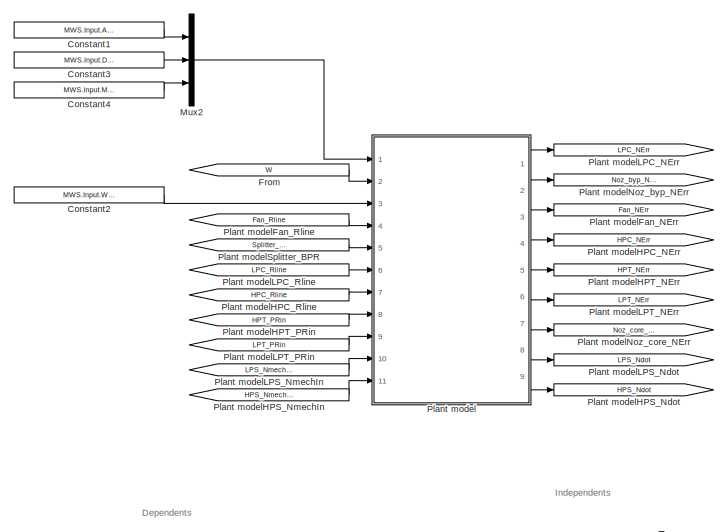
[diagram: root canvas - part 1/2, top left region]
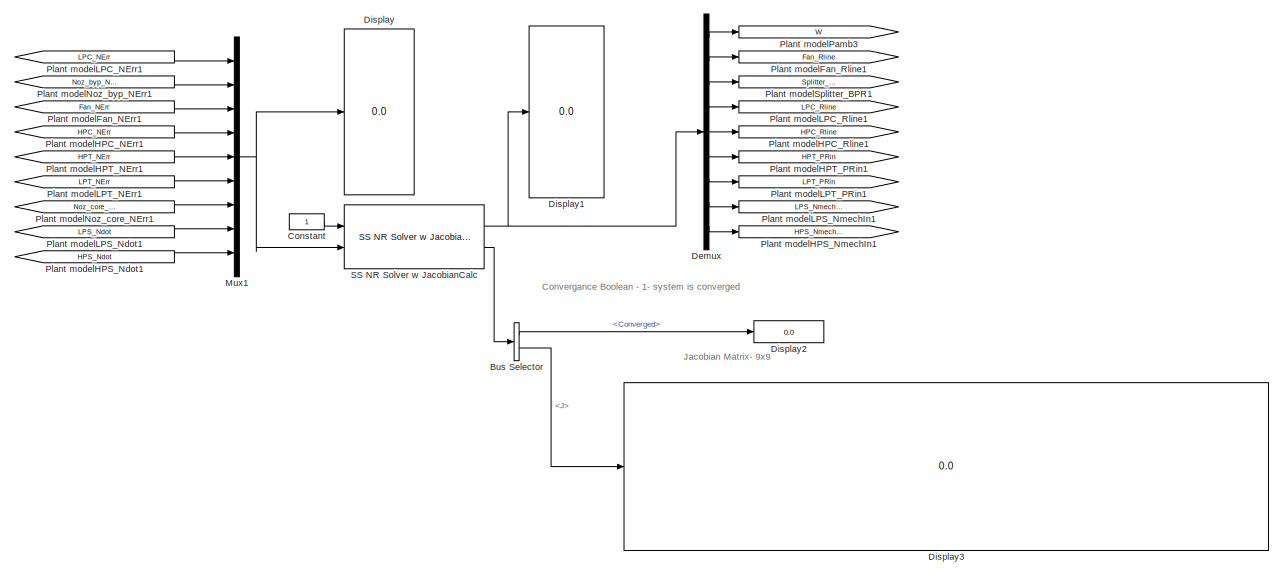
[diagram: root canvas - part 2/2, full width, bottom band]
MODEL slx_f28e8e738f5b
KIND model
CONFIG AbsTol = auto
CONFIG EnableMultiTasking = on
CONFIG FixedStep = 0.2
CONFIG MaxStep = auto
CONFIG MinStep = auto
CONFIG RelTol = 1e-3
CONFIG SampleTimeConstraint = Unconstrained
CONFIG Solver = FixedStepDiscrete
CONFIG SolverName = FixedStepDiscrete
CONFIG StartTime = 0.0
CONFIG StopTime = 30.0
BLOCK [BusSelector] Bus Selector
  OutputSignals = Converged,J
  Ports = [1, 2]
BLOCK [Constant] Constant
BLOCK [Constant] Constant1
  Value = MWS.Input.Altitude
BLOCK [Constant] Constant2
  Value = MWS.Input.Wfin
BLOCK [Constant] Constant3
  Value = MWS.Input.DeltaTamb
BLOCK [Constant] Constant4
  Value = MWS.Input.MachNumb
BLOCK [Demux] Demux
  DisplayOption = bar
  Outputs = 9
  Ports = [1, 9]
BLOCK [Display] Display
  Decimation = 1
  Ports = [1]
BLOCK [Display] Display1
  Decimation = 1
  Ports = [1]
BLOCK [Display] Display2
  Decimation = 1
  Ports = [1]
BLOCK [Display] Display3
  Decimation = 1
  Ports = [1]
BLOCK [From] From
  GotoTag = W
BLOCK [Mux] Mux1
  DisplayOption = bar
  Inputs = 9
  Ports = [9, 1]
BLOCK [Mux] Mux2
  DisplayOption = bar
  Inputs = 3
  Ports = [3, 1]
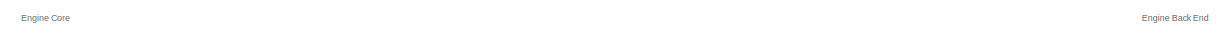
[diagram: Plant model - part 1/7, top right region]
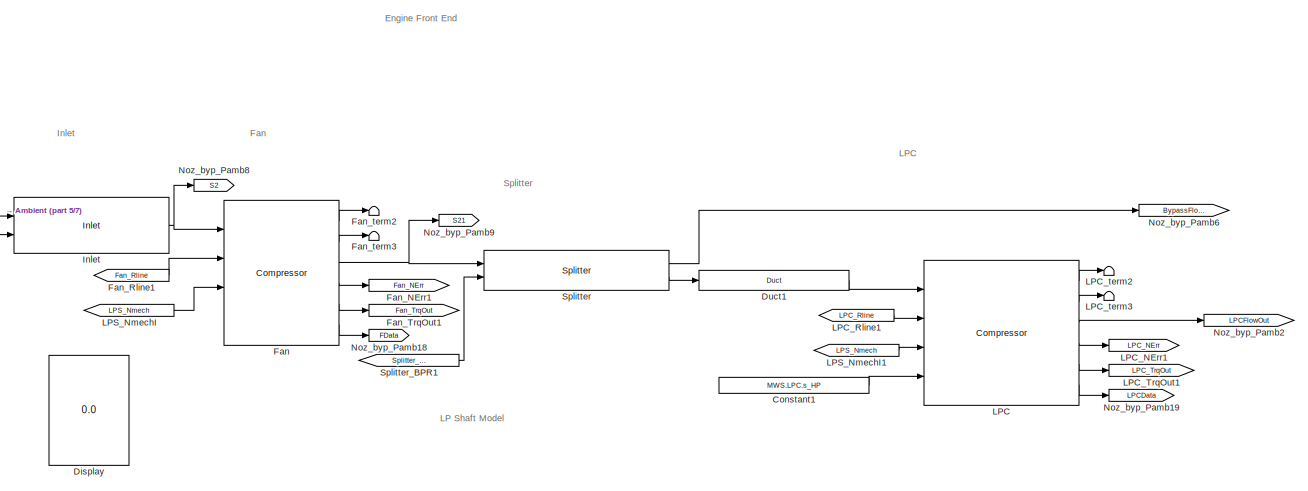
[diagram: Plant model - part 2/7, top left region]
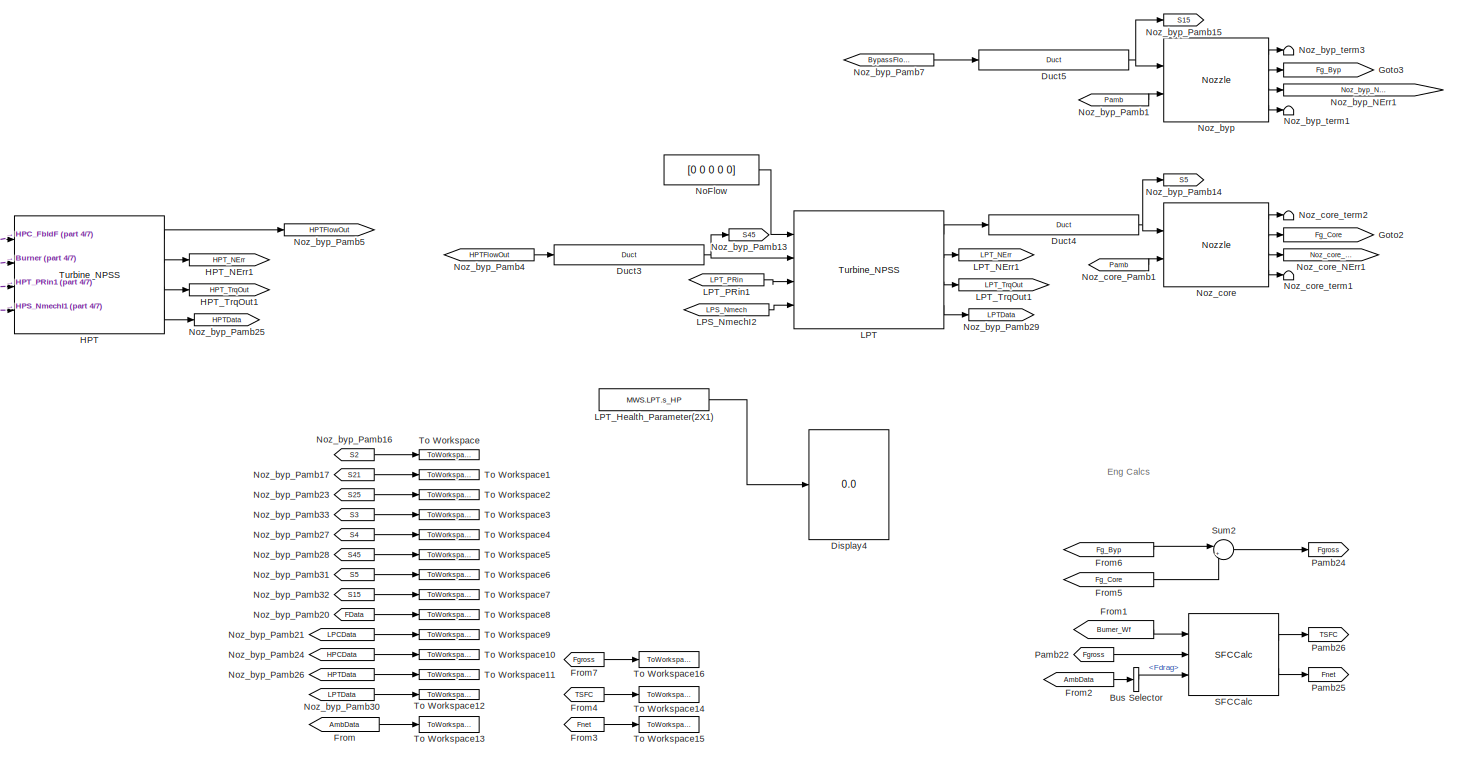
[diagram: Plant model - part 3/7, top right region]
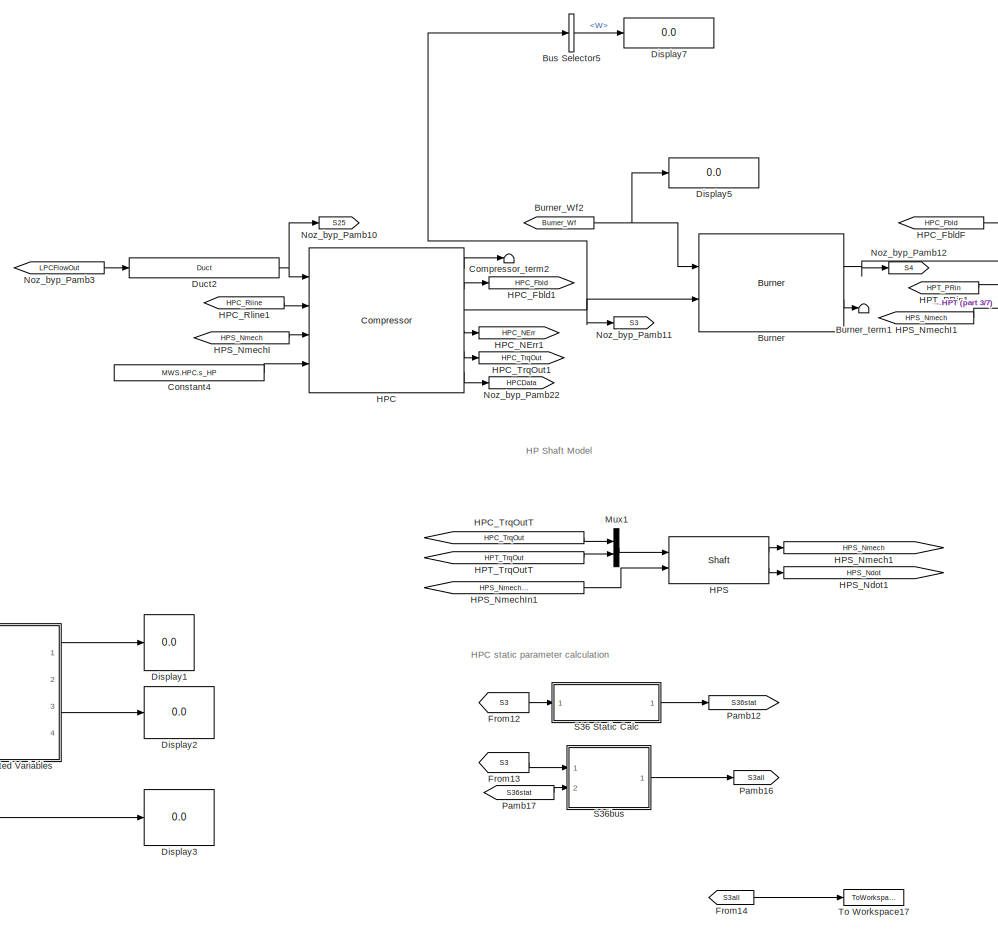
[diagram: Plant model - part 4/7, central region]
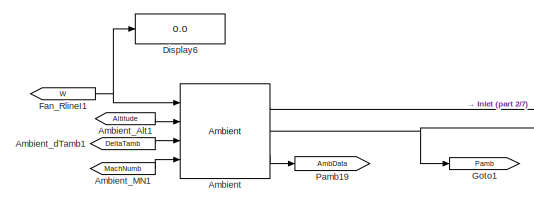
[diagram: Plant model - part 5/7, top left region]
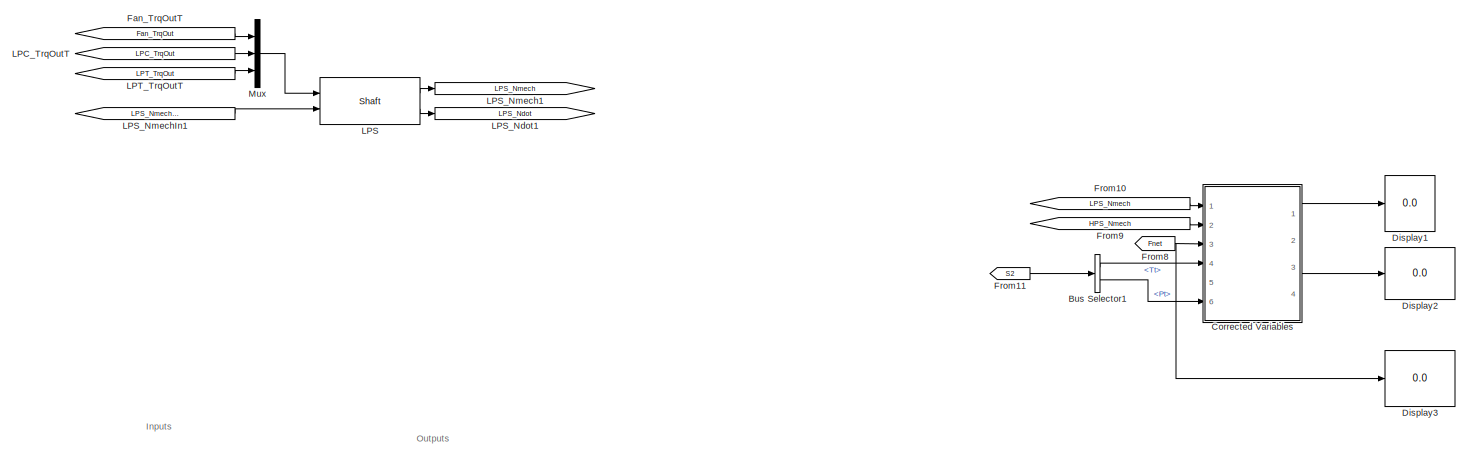
[diagram: Plant model - part 6/7, central region]
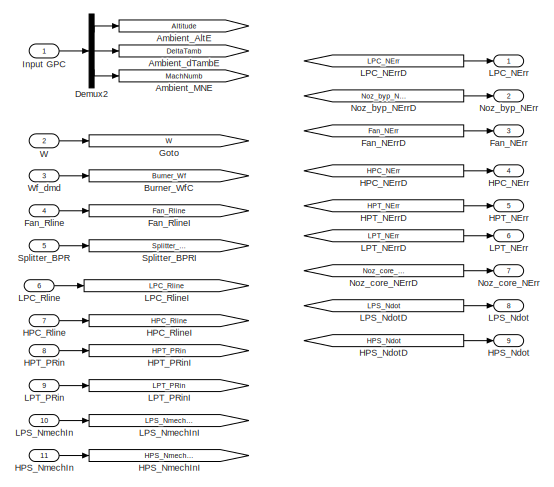
[diagram: Plant model - part 7/7, bottom left region]
BLOCK [SubSystem] Plant model
  Ports = [11, 9]
  RequestExecContextInheritance = off
  Variant = off
BLOCK [Reference] Plant model/Ambient  REF=Lib_Turbo_Ambient_TMATS/Ambient
  Ports = [4, 3]
  SourceBlock = Lib_Turbo_Ambient_TMATS/Ambient
  SourceType = T-MATS: Ambient Library Block
BLOCK [From] Plant model/Ambient_Alt1
  GotoTag = Altitude
BLOCK [Goto] Plant model/Ambient_AltE
  GotoTag = Altitude
BLOCK [From] Plant model/Ambient_MN1
  GotoTag = MachNumb
BLOCK [Goto] Plant model/Ambient_MNE
  GotoTag = MachNumb
BLOCK [From] Plant model/Ambient_dTamb1
  GotoTag = DeltaTamb
BLOCK [Goto] Plant model/Ambient_dTambE
  GotoTag = DeltaTamb
BLOCK [Reference] Plant model/Burner  REF=Lib_Turbo_Burner_TMATS/Burner
  Ports = [2, 2]
  SourceBlock = Lib_Turbo_Burner_TMATS/Burner
  SourceType = T-MATS: Burner Library Block
BLOCK [From] Plant model/Burner_Wf2
  GotoTag = Burner_Wf
BLOCK [Goto] Plant model/Burner_WfC
  GotoTag = Burner_Wf
BLOCK [Terminator] Plant model/Burner_term1
BLOCK [BusSelector] Plant model/Bus Selector
  OutputSignals = Fdrag
  Ports = [1, 1]
BLOCK [BusSelector] Plant model/Bus Selector1
  OutputSignals = Tt,Pt
  Ports = [1, 2]
BLOCK [BusSelector] Plant model/Bus Selector5
  OutputSignals = W
  Ports = [1, 1]
BLOCK [Terminator] Plant model/Compressor_term2
BLOCK [Constant] Plant model/Constant1
  Value = MWS.LPC.s_HP
BLOCK [Constant] Plant model/Constant4
  Value = MWS.HPC.s_HP
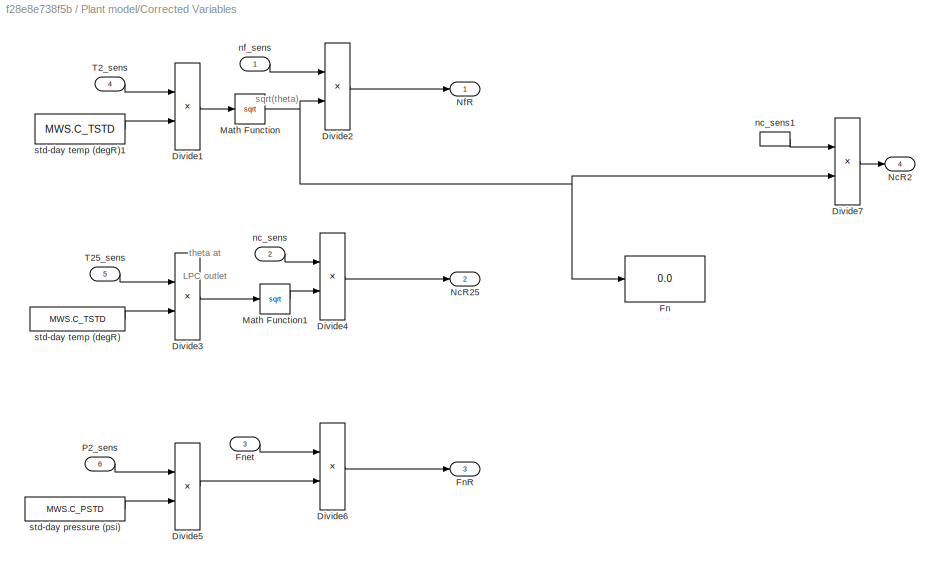
BLOCK [SubSystem] Plant model/Corrected Variables
  Ports = [6, 4]
  RequestExecContextInheritance = off
  Variant = off
BLOCK [Product] Plant model/Corrected Variables/Divide1
  InputSameDT = off
  Inputs = */
  OutDataTypeStr = Inherit: Inherit via internal rule
  Ports = [2, 1]
  RndMeth = Floor
  SaturateOnIntegerOverflow = off
BLOCK [Product] Plant model/Corrected Variables/Divide2
  InputSameDT = off
  Inputs = */
  OutDataTypeStr = Inherit: Inherit via internal rule
  Ports = [2, 1]
  RndMeth = Floor
  SaturateOnIntegerOverflow = off
BLOCK [Product] Plant model/Corrected Variables/Divide3
  InputSameDT = off
  Inputs = */
  OutDataTypeStr = Inherit: Inherit via internal rule
  Ports = [2, 1]
  RndMeth = Floor
  SaturateOnIntegerOverflow = off
BLOCK [Product] Plant model/Corrected Variables/Divide4
  InputSameDT = off
  Inputs = */
  OutDataTypeStr = Inherit: Inherit via internal rule
  Ports = [2, 1]
  RndMeth = Floor
  SaturateOnIntegerOverflow = off
BLOCK [Product] Plant model/Corrected Variables/Divide5
  InputSameDT = off
  Inputs = */
  OutDataTypeStr = Inherit: Inherit via internal rule
  Ports = [2, 1]
  RndMeth = Floor
  SaturateOnIntegerOverflow = off
BLOCK [Product] Plant model/Corrected Variables/Divide6
  InputSameDT = off
  Inputs = */
  OutDataTypeStr = Inherit: Inherit via internal rule
  Ports = [2, 1]
  RndMeth = Floor
  SaturateOnIntegerOverflow = off
BLOCK [Product] Plant model/Corrected Variables/Divide7
  InputSameDT = off
  Inputs = */
  OutDataTypeStr = Inherit: Inherit via internal rule
  Ports = [2, 1]
  RndMeth = Floor
  SaturateOnIntegerOverflow = off
BLOCK [Display] Plant model/Corrected Variables/Fn
  Decimation = 1
  Ports = [1]
BLOCK [Outport] Plant model/Corrected Variables/FnR
  IconDisplay = Port number
  Port = 3
BLOCK [Inport] Plant model/Corrected Variables/Fnet
  IconDisplay = Port number
  Port = 3
BLOCK [Math] Plant model/Corrected Variables/Math Function
  Operator = sqrt
  Ports = [1, 1]
BLOCK [Math] Plant model/Corrected Variables/Math Function1
  Operator = sqrt
  Ports = [1, 1]
BLOCK [Outport] Plant model/Corrected Variables/NcR2
  IconDisplay = Port number
  Port = 4
BLOCK [Outport] Plant model/Corrected Variables/NcR25
  IconDisplay = Port number
  Port = 2
BLOCK [Outport] Plant model/Corrected Variables/NfR
  IconDisplay = Port number
BLOCK [Inport] Plant model/Corrected Variables/P2_sens
  IconDisplay = Port number
  Port = 6
BLOCK [Inport] Plant model/Corrected Variables/T25_sens
  IconDisplay = Port number
  Port = 5
BLOCK [Inport] Plant model/Corrected Variables/T2_sens
  IconDisplay = Port number
  Port = 4
BLOCK [Inport] Plant model/Corrected Variables/nc_sens
  IconDisplay = Port number
  Port = 2
BLOCK [InportShadow] Plant model/Corrected Variables/nc_sens1
  IconDisplay = Port number
  Port = 2
BLOCK [Inport] Plant model/Corrected Variables/nf_sens
  IconDisplay = Port number
BLOCK [Constant] Plant model/Corrected Variables/std-day pressure (psi)
  Value = MWS.C_PSTD
BLOCK [Constant] Plant model/Corrected Variables/std-day temp (degR)
  Value = MWS.C_TSTD
BLOCK [Constant] Plant model/Corrected Variables/std-day temp (degR)1
  Value = MWS.C_TSTD
BLOCK [Demux] Plant model/Demux2
  DisplayOption = bar
  Outputs = 3
  Ports = [1, 3]
BLOCK [Display] Plant model/Display
  Decimation = 1
  Ports = [1]
BLOCK [Display] Plant model/Display1
  Decimation = 1
  Ports = [1]
BLOCK [Display] Plant model/Display2
  Decimation = 1
  Ports = [1]
BLOCK [Display] Plant model/Display3
  Decimation = 1
  Ports = [1]
BLOCK [Display] Plant model/Display4
  Decimation = 1
  Ports = [1]
BLOCK [Display] Plant model/Display5
  Decimation = 1
  Ports = [1]
BLOCK [Display] Plant model/Display6
  Decimation = 1
  Ports = [1]
BLOCK [Display] Plant model/Display7
  Decimation = 1
  Ports = [1]
BLOCK [Reference] Plant model/Duct1  REF=Lib_Turbo_Duct_TMATS/Duct
  Ports = [1, 1]
  SourceBlock = Lib_Turbo_Duct_TMATS/Duct
  SourceType = T-MATS: Duct Library Block
BLOCK [Reference] Plant model/Duct2  REF=Lib_Turbo_Duct_TMATS/Duct
  Ports = [1, 1]
  SourceBlock = Lib_Turbo_Duct_TMATS/Duct
  SourceType = T-MATS: Duct Library Block
BLOCK [Reference] Plant model/Duct3  REF=Lib_Turbo_Duct_TMATS/Duct
  Ports = [1, 1]
  SourceBlock = Lib_Turbo_Duct_TMATS/Duct
  SourceType = T-MATS: Duct Library Block
BLOCK [Reference] Plant model/Duct4  REF=Lib_Turbo_Duct_TMATS/Duct
  Ports = [1, 1]
  SourceBlock = Lib_Turbo_Duct_TMATS/Duct
  SourceType = T-MATS: Duct Library Block
BLOCK [Reference] Plant model/Duct5  REF=Lib_Turbo_Duct_TMATS/Duct
  Ports = [1, 1]
  SourceBlock = Lib_Turbo_Duct_TMATS/Duct
  SourceType = T-MATS: Duct Library Block
BLOCK [Reference] Plant model/Fan  REF=Lib_Turbo_Compressor_TMATS/Compressor
  Ports = [4, 6]
  SourceBlock = Lib_Turbo_Compressor_TMATS/Compressor
  SourceType = T-MATS: Compressor Library Block
BLOCK [Outport] Plant model/Fan_NErr
  IconDisplay = Port number
  Port = 3
BLOCK [Goto] Plant model/Fan_NErr1
  GotoTag = Fan_NErr
BLOCK [From] Plant model/Fan_NErrD
  GotoTag = Fan_NErr
BLOCK [Inport] Plant model/Fan_Rline
  IconDisplay = Port number
  Port = 4
BLOCK [From] Plant model/Fan_Rline1
  GotoTag = Fan_Rline
BLOCK [Goto] Plant model/Fan_RlineI
  GotoTag = Fan_Rline
BLOCK [From] Plant model/Fan_RlineI1
  GotoTag = W
BLOCK [Goto] Plant model/Fan_TrqOut1
  GotoTag = Fan_TrqOut
BLOCK [From] Plant model/Fan_TrqOutT
  GotoTag = Fan_TrqOut
BLOCK [Terminator] Plant model/Fan_term2
BLOCK [Terminator] Plant model/Fan_term3
BLOCK [From] Plant model/From
  GotoTag = AmbData
BLOCK [From] Plant model/From1
  GotoTag = Burner_Wf
BLOCK [From] Plant model/From10
  GotoTag = LPS_Nmech
BLOCK [From] Plant model/From11
  GotoTag = S2
BLOCK [From] Plant model/From12
  GotoTag = S3
BLOCK [From] Plant model/From13
  GotoTag = S3
BLOCK [From] Plant model/From14
  GotoTag = S3all
BLOCK [From] Plant model/From2
  GotoTag = AmbData
BLOCK [From] Plant model/From3
  GotoTag = Fnet
BLOCK [From] Plant model/From4
  GotoTag = TSFC
BLOCK [From] Plant model/From5
  GotoTag = Fg_Core
BLOCK [From] Plant model/From6
  GotoTag = Fg_Byp
BLOCK [From] Plant model/From7
  GotoTag = Fgross
BLOCK [From] Plant model/From8
  GotoTag = Fnet
BLOCK [From] Plant model/From9
  GotoTag = HPS_Nmech
BLOCK [Goto] Plant model/Goto
  GotoTag = W
BLOCK [Goto] Plant model/Goto1
  GotoTag = Pamb
BLOCK [Goto] Plant model/Goto2
  GotoTag = Fg_Core
BLOCK [Goto] Plant model/Goto3
  GotoTag = Fg_Byp
BLOCK [Reference] Plant model/HPC  REF=Lib_Turbo_Compressor_TMATS/Compressor
  Ports = [4, 6]
  SourceBlock = Lib_Turbo_Compressor_TMATS/Compressor
  SourceType = T-MATS: Compressor Library Block
BLOCK [Goto] Plant model/HPC_Fbld1
  GotoTag = HPC_Fbld
BLOCK [From] Plant model/HPC_FbldF
  GotoTag = HPC_Fbld
BLOCK [Outport] Plant model/HPC_NErr
  IconDisplay = Port number
  Port = 4
BLOCK [Goto] Plant model/HPC_NErr1
  GotoTag = HPC_NErr
BLOCK [From] Plant model/HPC_NErrD
  GotoTag = HPC_NErr
BLOCK [Inport] Plant model/HPC_Rline
  IconDisplay = Port number
  Port = 7
BLOCK [From] Plant model/HPC_Rline1
  GotoTag = HPC_Rline
BLOCK [Goto] Plant model/HPC_RlineI
  GotoTag = HPC_Rline
BLOCK [Goto] Plant model/HPC_TrqOut1
  GotoTag = HPC_TrqOut
BLOCK [From] Plant model/HPC_TrqOutT
  GotoTag = HPC_TrqOut
BLOCK [Reference] Plant model/HPS  REF=Lib_Turbo_Shaft_TMATS/Shaft
  Ports = [2, 2]
  SourceBlock = Lib_Turbo_Shaft_TMATS/Shaft
  SourceType = T-MATS: Shaft Library Block
BLOCK [Outport] Plant model/HPS_Ndot
  IconDisplay = Port number
  Port = 9
BLOCK [Goto] Plant model/HPS_Ndot1
  GotoTag = HPS_Ndot
BLOCK [From] Plant model/HPS_NdotD
  GotoTag = HPS_Ndot
BLOCK [Goto] Plant model/HPS_Nmech1
  GotoTag = HPS_Nmech
BLOCK [From] Plant model/HPS_NmechI
  GotoTag = HPS_Nmech
BLOCK [From] Plant model/HPS_NmechI1
  GotoTag = HPS_Nmech
BLOCK [Inport] Plant model/HPS_NmechIn
  IconDisplay = Port number
  Port = 11
BLOCK [From] Plant model/HPS_NmechIn1
  GotoTag = HPS_NmechIn
BLOCK [Goto] Plant model/HPS_NmechInI
  GotoTag = HPS_NmechIn
BLOCK [Reference] Plant model/HPT  REF=Lib_Turbo_TurbineNPSS_TMATS/Turbine_NPSS
  Ports = [4, 4]
  SourceBlock = Lib_Turbo_TurbineNPSS_TMATS/Turbine_NPSS
  SourceType = T-MATS: Turbine, NPSS Library Block
BLOCK [Outport] Plant model/HPT_NErr
  IconDisplay = Port number
  Port = 5
BLOCK [Goto] Plant model/HPT_NErr1
  GotoTag = HPT_NErr
BLOCK [From] Plant model/HPT_NErrD
  GotoTag = HPT_NErr
BLOCK [Inport] Plant model/HPT_PRin
  IconDisplay = Port number
  Port = 8
BLOCK [From] Plant model/HPT_PRin1
  GotoTag = HPT_PRin
BLOCK [Goto] Plant model/HPT_PRinI
  GotoTag = HPT_PRin
BLOCK [Goto] Plant model/HPT_TrqOut1
  GotoTag = HPT_TrqOut
BLOCK [From] Plant model/HPT_TrqOutT
  GotoTag = HPT_TrqOut
BLOCK [Reference] Plant model/Inlet  REF=Lib_Turbo_Inlet_TMATS/Inlet
  Ports = [2, 1]
  SourceBlock = Lib_Turbo_Inlet_TMATS/Inlet
  SourceType = T-MATS: Inlet Library Block
BLOCK [Inport] Plant model/Input GPC
  IconDisplay = Port number
BLOCK [Reference] Plant model/LPC  REF=Lib_Turbo_Compressor_TMATS/Compressor
  Ports = [4, 6]
  SourceBlock = Lib_Turbo_Compressor_TMATS/Compressor
  SourceType = T-MATS: Compressor Library Block
BLOCK [Outport] Plant model/LPC_NErr
  IconDisplay = Port number
BLOCK [Goto] Plant model/LPC_NErr1
  GotoTag = LPC_NErr
BLOCK [From] Plant model/LPC_NErrD
  GotoTag = LPC_NErr
BLOCK [Inport] Plant model/LPC_Rline
  IconDisplay = Port number
  Port = 6
BLOCK [From] Plant model/LPC_Rline1
  GotoTag = LPC_Rline
BLOCK [Goto] Plant model/LPC_RlineI
  GotoTag = LPC_Rline
BLOCK [Goto] Plant model/LPC_TrqOut1
  GotoTag = LPC_TrqOut
BLOCK [From] Plant model/LPC_TrqOutT
  GotoTag = LPC_TrqOut
BLOCK [Terminator] Plant model/LPC_term2
BLOCK [Terminator] Plant model/LPC_term3
BLOCK [Reference] Plant model/LPS  REF=Lib_Turbo_Shaft_TMATS/Shaft
  Ports = [2, 2]
  SourceBlock = Lib_Turbo_Shaft_TMATS/Shaft
  SourceType = T-MATS: Shaft Library Block
BLOCK [Outport] Plant model/LPS_Ndot
  IconDisplay = Port number
  Port = 8
BLOCK [Goto] Plant model/LPS_Ndot1
  GotoTag = LPS_Ndot
BLOCK [From] Plant model/LPS_NdotD
  GotoTag = LPS_Ndot
BLOCK [Goto] Plant model/LPS_Nmech1
  GotoTag = LPS_Nmech
BLOCK [From] Plant model/LPS_NmechI
  GotoTag = LPS_Nmech
BLOCK [From] Plant model/LPS_NmechI1
  GotoTag = LPS_Nmech
BLOCK [From] Plant model/LPS_NmechI2
  GotoTag = LPS_Nmech
BLOCK [Inport] Plant model/LPS_NmechIn
  IconDisplay = Port number
  Port = 10
BLOCK [From] Plant model/LPS_NmechIn1
  GotoTag = LPS_NmechIn
BLOCK [Goto] Plant model/LPS_NmechInI
  GotoTag = LPS_NmechIn
BLOCK [Reference] Plant model/LPT  REF=Lib_Turbo_TurbineNPSS_TMATS/Turbine_NPSS
  Ports = [4, 4]
  SourceBlock = Lib_Turbo_TurbineNPSS_TMATS/Turbine_NPSS
  SourceType = T-MATS: Turbine, NPSS Library Block
BLOCK [Constant] Plant model/LPT_Health_Parameter(2X1)
  Value = MWS.LPT.s_HP
BLOCK [Outport] Plant model/LPT_NErr
  IconDisplay = Port number
  Port = 6
BLOCK [Goto] Plant model/LPT_NErr1
  GotoTag = LPT_NErr
BLOCK [From] Plant model/LPT_NErrD
  GotoTag = LPT_NErr
BLOCK [Inport] Plant model/LPT_PRin
  IconDisplay = Port number
  Port = 9
BLOCK [From] Plant model/LPT_PRin1
  GotoTag = LPT_PRin
BLOCK [Goto] Plant model/LPT_PRinI
  GotoTag = LPT_PRin
BLOCK [Goto] Plant model/LPT_TrqOut1
  GotoTag = LPT_TrqOut
BLOCK [From] Plant model/LPT_TrqOutT
  GotoTag = LPT_TrqOut
BLOCK [Mux] Plant model/Mux
  DisplayOption = bar
  Inputs = 3
  Ports = [3, 1]
BLOCK [Mux] Plant model/Mux1
  DisplayOption = bar
  Inputs = 2
  Ports = [2, 1]
BLOCK [Constant] Plant model/NoFlow
  Value = [0 0 0 0 0]
BLOCK [Reference] Plant model/Noz_byp  REF=Lib_Turbo_Nozzle_TMATS/Nozzle
  Ports = [2, 4]
  SourceBlock = Lib_Turbo_Nozzle_TMATS/Nozzle
  SourceType = T-MATS: Nozzle Library Block
BLOCK [Outport] Plant model/Noz_byp_NErr
  IconDisplay = Port number
  Port = 2
BLOCK [Goto] Plant model/Noz_byp_NErr1
  GotoTag = Noz_byp_NErr
BLOCK [From] Plant model/Noz_byp_NErrD
  GotoTag = Noz_byp_NErr
BLOCK [From] Plant model/Noz_byp_Pamb1
  GotoTag = Pamb
BLOCK [Goto] Plant model/Noz_byp_Pamb10
  GotoTag = S25
BLOCK [Goto] Plant model/Noz_byp_Pamb11
  GotoTag = S3
BLOCK [Goto] Plant model/Noz_byp_Pamb12
  GotoTag = S4
BLOCK [Goto] Plant model/Noz_byp_Pamb13
  GotoTag = S45
BLOCK [Goto] Plant model/Noz_byp_Pamb14
  GotoTag = S5
BLOCK [Goto] Plant model/Noz_byp_Pamb15
  GotoTag = S15
BLOCK [From] Plant model/Noz_byp_Pamb16
  GotoTag = S2
BLOCK [From] Plant model/Noz_byp_Pamb17
  GotoTag = S21
BLOCK [Goto] Plant model/Noz_byp_Pamb18
  GotoTag = FData
BLOCK [Goto] Plant model/Noz_byp_Pamb19
  GotoTag = LPCData
BLOCK [Goto] Plant model/Noz_byp_Pamb2
  GotoTag = LPCFlowOut
BLOCK [From] Plant model/Noz_byp_Pamb20
  GotoTag = FData
BLOCK [From] Plant model/Noz_byp_Pamb21
  GotoTag = LPCData
BLOCK [Goto] Plant model/Noz_byp_Pamb22
  GotoTag = HPCData
BLOCK [From] Plant model/Noz_byp_Pamb23
  GotoTag = S25
BLOCK [From] Plant model/Noz_byp_Pamb24
  GotoTag = HPCData
BLOCK [Goto] Plant model/Noz_byp_Pamb25
  GotoTag = HPTData
BLOCK [From] Plant model/Noz_byp_Pamb26
  GotoTag = HPTData
BLOCK [From] Plant model/Noz_byp_Pamb27
  GotoTag = S4
BLOCK [From] Plant model/Noz_byp_Pamb28
  GotoTag = S45
BLOCK [Goto] Plant model/Noz_byp_Pamb29
  GotoTag = LPTData
BLOCK [From] Plant model/Noz_byp_Pamb3
  GotoTag = LPCFlowOut
BLOCK [From] Plant model/Noz_byp_Pamb30
  GotoTag = LPTData
BLOCK [From] Plant model/Noz_byp_Pamb31
  GotoTag = S5
BLOCK [From] Plant model/Noz_byp_Pamb32
  GotoTag = S15
BLOCK [From] Plant model/Noz_byp_Pamb33
  GotoTag = S3
BLOCK [From] Plant model/Noz_byp_Pamb4
  GotoTag = HPTFlowOut
BLOCK [Goto] Plant model/Noz_byp_Pamb5
  GotoTag = HPTFlowOut
BLOCK [Goto] Plant model/Noz_byp_Pamb6
  GotoTag = BypassFlowOut
BLOCK [From] Plant model/Noz_byp_Pamb7
  GotoTag = BypassFlowOut
BLOCK [Goto] Plant model/Noz_byp_Pamb8
  GotoTag = S2
BLOCK [Goto] Plant model/Noz_byp_Pamb9
  GotoTag = S21
BLOCK [Terminator] Plant model/Noz_byp_term1
BLOCK [Terminator] Plant model/Noz_byp_term3
BLOCK [Reference] Plant model/Noz_core  REF=Lib_Turbo_Nozzle_TMATS/Nozzle
  Ports = [2, 4]
  SourceBlock = Lib_Turbo_Nozzle_TMATS/Nozzle
  SourceType = T-MATS: Nozzle Library Block
BLOCK [Outport] Plant model/Noz_core_NErr
  IconDisplay = Port number
  Port = 7
BLOCK [Goto] Plant model/Noz_core_NErr1
  GotoTag = Noz_core_NErr
BLOCK [From] Plant model/Noz_core_NErrD
  GotoTag = Noz_core_NErr
BLOCK [From] Plant model/Noz_core_Pamb1
  GotoTag = Pamb
BLOCK [Terminator] Plant model/Noz_core_term1
BLOCK [Terminator] Plant model/Noz_core_term2
BLOCK [Goto] Plant model/Pamb12
  GotoTag = S36stat
BLOCK [Goto] Plant model/Pamb16
  GotoTag = S3all
BLOCK [From] Plant model/Pamb17
  GotoTag = S36stat
BLOCK [Goto] Plant model/Pamb19
  GotoTag = AmbData
BLOCK [From] Plant model/Pamb22
  GotoTag = Fgross
BLOCK [Goto] Plant model/Pamb24
  GotoTag = Fgross
BLOCK [Goto] Plant model/Pamb25
  GotoTag = Fnet
BLOCK [Goto] Plant model/Pamb26
  GotoTag = TSFC
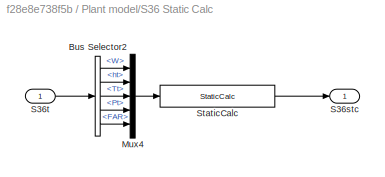
BLOCK [SubSystem] Plant model/S36 Static Calc
  Ports = [1, 1]
  RequestExecContextInheritance = off
  Variant = off
BLOCK [BusSelector] Plant model/S36 Static Calc/Bus Selector2
  OutputSignals = W,ht,Tt,Pt,FAR
  Ports = [1, 5]
BLOCK [Mux] Plant model/S36 Static Calc/Mux4
  DisplayOption = bar
  Inputs = 5
  Ports = [5, 1]
BLOCK [Outport] Plant model/S36 Static Calc/S36stc
  IconDisplay = Port number
BLOCK [Inport] Plant model/S36 Static Calc/S36t
  IconDisplay = Port number
BLOCK [Reference] Plant model/S36 Static Calc/StaticCalc  REF=Lib_Turbo_StaticCalc_TMATS/StaticCalc
  Ports = [1, 1]
  SourceBlock = Lib_Turbo_StaticCalc_TMATS/StaticCalc
  SourceType = T-MATS: Static Calculation Library Block
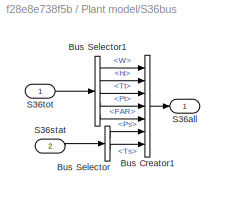
BLOCK [SubSystem] Plant model/S36bus
  Ports = [2, 1]
  RequestExecContextInheritance = off
  Variant = off
BLOCK [BusCreator] Plant model/S36bus/Bus Creator1
  DisplayOption = bar
  InheritFromInputs = on
  Inputs = 7
  Ports = [7, 1]
BLOCK [BusSelector] Plant model/S36bus/Bus Selector
  OutputSignals = Ps,Ts
  Ports = [1, 2]
BLOCK [BusSelector] Plant model/S36bus/Bus Selector1
  OutputSignals = W,ht,Tt,Pt,FAR
  Ports = [1, 5]
BLOCK [Outport] Plant model/S36bus/S36all
  IconDisplay = Port number
BLOCK [Inport] Plant model/S36bus/S36stat
  IconDisplay = Port number
  Port = 2
BLOCK [Inport] Plant model/S36bus/S36tot
  IconDisplay = Port number
BLOCK [Reference] Plant model/SFCCalc  REF=Lib_Turbo_SFCCalc_TMATS/SFCCalc
  Ports = [3, 2]
  SourceBlock = Lib_Turbo_SFCCalc_TMATS/SFCCalc
  SourceType = TMATS: SFC Calculation Library Block
BLOCK [Reference] Plant model/Splitter  REF=Lib_Turbo_Splitter_TMATS/Splitter
  Ports = [2, 2]
  SourceBlock = Lib_Turbo_Splitter_TMATS/Splitter
  SourceType = T-MATS: Splitter Library Block
BLOCK [Inport] Plant model/Splitter_BPR
  IconDisplay = Port number
  Port = 5
BLOCK [From] Plant model/Splitter_BPR1
  GotoTag = Splitter_BPR
BLOCK [Goto] Plant model/Splitter_BPRI
  GotoTag = Splitter_BPR
BLOCK [Sum] Plant model/Sum2
  IconShape = round
  InputSameDT = off
  Inputs = |++
  OutDataTypeStr = Inherit: Inherit via internal rule
  Ports = [2, 1]
  SaturateOnIntegerOverflow = off
BLOCK [ToWorkspace] Plant model/To Workspace
  FixptAsFi = on
  MaxDataPoints = inf
  Ports = [1]
  SampleTime = -1
  Save2DSignal = 3-D array (concatenate along third dimension)
  SaveFormat = Timeseries
  VariableName = S2
BLOCK [ToWorkspace] Plant model/To Workspace1
  FixptAsFi = on
  MaxDataPoints = inf
  Ports = [1]
  SampleTime = -1
  Save2DSignal = 3-D array (concatenate along third dimension)
  SaveFormat = Timeseries
  VariableName = S21
BLOCK [ToWorkspace] Plant model/To Workspace10
  FixptAsFi = on
  MaxDataPoints = inf
  Ports = [1]
  SampleTime = -1
  Save2DSignal = 3-D array (concatenate along third dimension)
  SaveFormat = Timeseries
  VariableName = HPCData
BLOCK [ToWorkspace] Plant model/To Workspace11
  FixptAsFi = on
  MaxDataPoints = inf
  Ports = [1]
  SampleTime = -1
  Save2DSignal = 3-D array (concatenate along third dimension)
  SaveFormat = Timeseries
  VariableName = HPTData
BLOCK [ToWorkspace] Plant model/To Workspace12
  FixptAsFi = on
  MaxDataPoints = inf
  Ports = [1]
  SampleTime = -1
  Save2DSignal = 3-D array (concatenate along third dimension)
  SaveFormat = Timeseries
  VariableName = LPTData
BLOCK [ToWorkspace] Plant model/To Workspace13
  FixptAsFi = on
  MaxDataPoints = inf
  Ports = [1]
  SampleTime = -1
  Save2DSignal = 3-D array (concatenate along third dimension)
  SaveFormat = Timeseries
  VariableName = AmbData
BLOCK [ToWorkspace] Plant model/To Workspace14
  FixptAsFi = on
  MaxDataPoints = inf
  Ports = [1]
  SampleTime = -1
  Save2DSignal = 3-D array (concatenate along third dimension)
  SaveFormat = Timeseries
  VariableName = TSFC
BLOCK [ToWorkspace] Plant model/To Workspace15
  FixptAsFi = on
  MaxDataPoints = inf
  Ports = [1]
  SampleTime = -1
  Save2DSignal = 3-D array (concatenate along third dimension)
  SaveFormat = Timeseries
  VariableName = Fnet
BLOCK [ToWorkspace] Plant model/To Workspace16
  FixptAsFi = on
  MaxDataPoints = inf
  Ports = [1]
  SampleTime = -1
  Save2DSignal = 3-D array (concatenate along third dimension)
  SaveFormat = Timeseries
  VariableName = Fgross
BLOCK [ToWorkspace] Plant model/To Workspace17
  FixptAsFi = on
  MaxDataPoints = inf
  Ports = [1]
  SampleTime = -1
  Save2DSignal = 3-D array (concatenate along third dimension)
  SaveFormat = Timeseries
  VariableName = S3all
BLOCK [ToWorkspace] Plant model/To Workspace2
  FixptAsFi = on
  MaxDataPoints = inf
  Ports = [1]
  SampleTime = -1
  Save2DSignal = 3-D array (concatenate along third dimension)
  SaveFormat = Timeseries
  VariableName = S25
BLOCK [ToWorkspace] Plant model/To Workspace3
  FixptAsFi = on
  MaxDataPoints = inf
  Ports = [1]
  SampleTime = -1
  Save2DSignal = 3-D array (concatenate along third dimension)
  SaveFormat = Timeseries
  VariableName = S3
BLOCK [ToWorkspace] Plant model/To Workspace4
  FixptAsFi = on
  MaxDataPoints = inf
  Ports = [1]
  SampleTime = -1
  Save2DSignal = 3-D array (concatenate along third dimension)
  SaveFormat = Timeseries
  VariableName = S4
BLOCK [ToWorkspace] Plant model/To Workspace5
  FixptAsFi = on
  MaxDataPoints = inf
  Ports = [1]
  SampleTime = -1
  Save2DSignal = 3-D array (concatenate along third dimension)
  SaveFormat = Timeseries
  VariableName = S45
BLOCK [ToWorkspace] Plant model/To Workspace6
  FixptAsFi = on
  MaxDataPoints = inf
  Ports = [1]
  SampleTime = -1
  Save2DSignal = 3-D array (concatenate along third dimension)
  SaveFormat = Timeseries
  VariableName = S5
BLOCK [ToWorkspace] Plant model/To Workspace7
  FixptAsFi = on
  MaxDataPoints = inf
  Ports = [1]
  SampleTime = -1
  Save2DSignal = 3-D array (concatenate along third dimension)
  SaveFormat = Timeseries
  VariableName = S15
BLOCK [ToWorkspace] Plant model/To Workspace8
  FixptAsFi = on
  MaxDataPoints = inf
  Ports = [1]
  SampleTime = -1
  Save2DSignal = 3-D array (concatenate along third dimension)
  SaveFormat = Timeseries
  VariableName = FData
BLOCK [ToWorkspace] Plant model/To Workspace9
  FixptAsFi = on
  MaxDataPoints = inf
  Ports = [1]
  SampleTime = -1
  Save2DSignal = 3-D array (concatenate along third dimension)
  SaveFormat = Timeseries
  VariableName = LPCData
BLOCK [Inport] Plant model/W
  IconDisplay = Port number
  Port = 2
BLOCK [Inport] Plant model/Wf_dmd
  IconDisplay = Port number
  Port = 3
BLOCK [Goto] Plant modelFan_NErr
  GotoTag = Fan_NErr
BLOCK [From] Plant modelFan_NErr1
  GotoTag = Fan_NErr
BLOCK [From] Plant modelFan_Rline
  GotoTag = Fan_Rline
BLOCK [Goto] Plant modelFan_Rline1
  GotoTag = Fan_Rline
BLOCK [Goto] Plant modelHPC_NErr
  GotoTag = HPC_NErr
BLOCK [From] Plant modelHPC_NErr1
  GotoTag = HPC_NErr
BLOCK [From] Plant modelHPC_Rline
  GotoTag = HPC_Rline
BLOCK [Goto] Plant modelHPC_Rline1
  GotoTag = HPC_Rline
BLOCK [Goto] Plant modelHPS_Ndot
  GotoTag = HPS_Ndot
BLOCK [From] Plant modelHPS_Ndot1
  GotoTag = HPS_Ndot
BLOCK [From] Plant modelHPS_NmechIn
  GotoTag = HPS_NmechIn
BLOCK [Goto] Plant modelHPS_NmechIn1
  GotoTag = HPS_NmechIn
BLOCK [Goto] Plant modelHPT_NErr
  GotoTag = HPT_NErr
BLOCK [From] Plant modelHPT_NErr1
  GotoTag = HPT_NErr
BLOCK [From] Plant modelHPT_PRin
  GotoTag = HPT_PRin
BLOCK [Goto] Plant modelHPT_PRin1
  GotoTag = HPT_PRin
BLOCK [Goto] Plant modelLPC_NErr
  GotoTag = LPC_NErr
BLOCK [From] Plant modelLPC_NErr1
  GotoTag = LPC_NErr
BLOCK [From] Plant modelLPC_Rline
  GotoTag = LPC_Rline
BLOCK [Goto] Plant modelLPC_Rline1
  GotoTag = LPC_Rline
BLOCK [Goto] Plant modelLPS_Ndot
  GotoTag = LPS_Ndot
BLOCK [From] Plant modelLPS_Ndot1
  GotoTag = LPS_Ndot
BLOCK [From] Plant modelLPS_NmechIn
  GotoTag = LPS_NmechIn
BLOCK [Goto] Plant modelLPS_NmechIn1
  GotoTag = LPS_NmechIn
BLOCK [Goto] Plant modelLPT_NErr
  GotoTag = LPT_NErr
BLOCK [From] Plant modelLPT_NErr1
  GotoTag = LPT_NErr
BLOCK [From] Plant modelLPT_PRin
  GotoTag = LPT_PRin
BLOCK [Goto] Plant modelLPT_PRin1
  GotoTag = LPT_PRin
BLOCK [Goto] Plant modelNoz_byp_NErr
  GotoTag = Noz_byp_NErr
BLOCK [From] Plant modelNoz_byp_NErr1
  GotoTag = Noz_byp_NErr
BLOCK [Goto] Plant modelNoz_core_NErr
  GotoTag = Noz_core_NErr
BLOCK [From] Plant modelNoz_core_NErr1
  GotoTag = Noz_core_NErr
BLOCK [Goto] Plant modelPamb3
  GotoTag = W
BLOCK [From] Plant modelSplitter_BPR
  GotoTag = Splitter_BPR
BLOCK [Goto] Plant modelSplitter_BPR1
  GotoTag = Splitter_BPR
BLOCK [Reference] SS NR Solver w JacobianCalc  REF=Lib_Solve_SSNRSolverJC_TMATS/SS NR Solver w JacobianCalc
  Ports = [2, 2]
  SourceBlock = Lib_Solve_SSNRSolverJC_TMATS/SS NR Solver w JacobianCalc
  SourceType = T-MATS: SS NR Solver w Jacobian Calc Library Block
ANNOTATION (root): Convergance Boolean - 1- system is converged
ANNOTATION (root): Dependents
ANNOTATION (root): Independents
ANNOTATION (root): Jacobian Matrix- 9x9
ANNOTATION Plant model: Eng Calcs
ANNOTATION Plant model: Engine Back End
ANNOTATION Plant model: Engine Core
ANNOTATION Plant model: Engine Front End
ANNOTATION Plant model: Fan
ANNOTATION Plant model: HP Shaft Model
ANNOTATION Plant model: HPC static parameter calculation
ANNOTATION Plant model: Inlet
ANNOTATION Plant model: Inputs
ANNOTATION Plant model: LP Shaft Model
ANNOTATION Plant model: LPC
ANNOTATION Plant model: Outputs
ANNOTATION Plant model: Splitter
ANNOTATION Plant model/Corrected Variables: sqrt(theta)
ANNOTATION Plant model/Corrected Variables: theta at LPC outlet
LINE Bus Selector:1 -> Display2:1
LINE Bus Selector:2 -> Display3:1
LINE Constant1:1 -> Mux2:1
LINE Constant2:1 -> Plant model:3
LINE Constant3:1 -> Mux2:2
LINE Constant4:1 -> Mux2:3
LINE Constant:1 -> SS NR Solver w JacobianCalc:1
LINE Demux:1 -> Plant modelPamb3:1
LINE Demux:2 -> Plant modelFan_Rline1:1
LINE Demux:3 -> Plant modelSplitter_BPR1:1
LINE Demux:4 -> Plant modelLPC_Rline1:1
LINE Demux:5 -> Plant modelHPC_Rline1:1
LINE Demux:6 -> Plant modelHPT_PRin1:1
LINE Demux:7 -> Plant modelLPT_PRin1:1
LINE Demux:8 -> Plant modelLPS_NmechIn1:1
LINE Demux:9 -> Plant modelHPS_NmechIn1:1
LINE From:1 -> Plant model:2
NET Mux1:1 -> Display:1, SS NR Solver w JacobianCalc:2
LINE Mux2:1 -> Plant model:1
LINE Plant model/Ambient:1 -> Plant model/Inlet:1
NET Plant model/Ambient:2 -> Plant model/Goto1:1, Plant model/Inlet:2
LINE Plant model/Ambient:3 -> Plant model/Pamb19:1
LINE Plant model/Ambient_Alt1:1 -> Plant model/Ambient:2
LINE Plant model/Ambient_MN1:1 -> Plant model/Ambient:4
LINE Plant model/Ambient_dTamb1:1 -> Plant model/Ambient:3
NET Plant model/Burner:1 -> Plant model/HPT:2, Plant model/Noz_byp_Pamb12:1
LINE Plant model/Burner:2 -> Plant model/Burner_term1:1
NET Plant model/Burner_Wf2:1 -> Plant model/Burner:1, Plant model/Display5:1
LINE Plant model/Bus Selector1:1 -> Plant model/Corrected Variables:4
LINE Plant model/Bus Selector1:2 -> Plant model/Corrected Variables:6
LINE Plant model/Bus Selector5:1 -> Plant model/Display7:1
LINE Plant model/Bus Selector:1 -> Plant model/SFCCalc:3
LINE Plant model/Constant1:1 -> Plant model/LPC:4
LINE Plant model/Constant4:1 -> Plant model/HPC:4
LINE Plant model/Corrected Variables/Divide1:1 -> Plant model/Corrected Variables/Math Function:1
LINE Plant model/Corrected Variables/Divide2:1 -> Plant model/Corrected Variables/NfR:1
LINE Plant model/Corrected Variables/Divide3:1 -> Plant model/Corrected Variables/Math Function1:1
LINE Plant model/Corrected Variables/Divide4:1 -> Plant model/Corrected Variables/NcR25:1
LINE Plant model/Corrected Variables/Divide5:1 -> Plant model/Corrected Variables/Divide6:2
LINE Plant model/Corrected Variables/Divide6:1 -> Plant model/Corrected Variables/FnR:1
LINE Plant model/Corrected Variables/Divide7:1 -> Plant model/Corrected Variables/NcR2:1
LINE Plant model/Corrected Variables/Fnet:1 -> Plant model/Corrected Variables/Divide6:1
LINE Plant model/Corrected Variables/Math Function1:1 -> Plant model/Corrected Variables/Divide4:2
NET Plant model/Corrected Variables/Math Function:1 -> Plant model/Corrected Variables/Divide2:2, Plant model/Corrected Variables/Divide7:2, Plant model/Corrected Variables/Fn:1
LINE Plant model/Corrected Variables/P2_sens:1 -> Plant model/Corrected Variables/Divide5:1
LINE Plant model/Corrected Variables/T25_sens:1 -> Plant model/Corrected Variables/Divide3:1
LINE Plant model/Corrected Variables/T2_sens:1 -> Plant model/Corrected Variables/Divide1:1
LINE Plant model/Corrected Variables/nc_sens1:1 -> Plant model/Corrected Variables/Divide7:1
LINE Plant model/Corrected Variables/nc_sens:1 -> Plant model/Corrected Variables/Divide4:1
LINE Plant model/Corrected Variables/nf_sens:1 -> Plant model/Corrected Variables/Divide2:1
LINE Plant model/Corrected Variables/std-day pressure (psi):1 -> Plant model/Corrected Variables/Divide5:2
LINE Plant model/Corrected Variables/std-day temp (degR)1:1 -> Plant model/Corrected Variables/Divide1:2
LINE Plant model/Corrected Variables/std-day temp (degR):1 -> Plant model/Corrected Variables/Divide3:2
LINE Plant model/Corrected Variables:1 -> Plant model/Display1:1
LINE Plant model/Corrected Variables:3 -> Plant model/Display2:1
LINE Plant model/Demux2:1 -> Plant model/Ambient_AltE:1
LINE Plant model/Demux2:2 -> Plant model/Ambient_dTambE:1
LINE Plant model/Demux2:3 -> Plant model/Ambient_MNE:1
LINE Plant model/Duct1:1 -> Plant model/LPC:1
NET Plant model/Duct2:1 -> Plant model/HPC:1, Plant model/Noz_byp_Pamb10:1
NET Plant model/Duct3:1 -> Plant model/LPT:2, Plant model/Noz_byp_Pamb13:1
NET Plant model/Duct4:1 -> Plant model/Noz_byp_Pamb14:1, Plant model/Noz_core:1
NET Plant model/Duct5:1 -> Plant model/Noz_byp:1, Plant model/Noz_byp_Pamb15:1
LINE Plant model/Fan:1 -> Plant model/Fan_term2:1
LINE Plant model/Fan:2 -> Plant model/Fan_term3:1
NET Plant model/Fan:3 -> Plant model/Noz_byp_Pamb9:1, Plant model/Splitter:1
LINE Plant model/Fan:4 -> Plant model/Fan_NErr1:1
LINE Plant model/Fan:5 -> Plant model/Fan_TrqOut1:1
LINE Plant model/Fan:6 -> Plant model/Noz_byp_Pamb18:1
LINE Plant model/Fan_NErrD:1 -> Plant model/Fan_NErr:1
LINE Plant model/Fan_Rline1:1 -> Plant model/Fan:2
LINE Plant model/Fan_Rline:1 -> Plant model/Fan_RlineI:1
NET Plant model/Fan_RlineI1:1 -> Plant model/Ambient:1, Plant model/Display6:1
LINE Plant model/Fan_TrqOutT:1 -> Plant model/Mux:1
LINE Plant model/From10:1 -> Plant model/Corrected Variables:1
LINE Plant model/From11:1 -> Plant model/Bus Selector1:1
LINE Plant model/From12:1 -> Plant model/S36 Static Calc:1
LINE Plant model/From13:1 -> Plant model/S36bus:1
LINE Plant model/From14:1 -> Plant model/To Workspace17:1
LINE Plant model/From1:1 -> Plant model/SFCCalc:1
LINE Plant model/From2:1 -> Plant model/Bus Selector:1
LINE Plant model/From3:1 -> Plant model/To Workspace15:1
LINE Plant model/From4:1 -> Plant model/To Workspace14:1
LINE Plant model/From5:1 -> Plant model/Sum2:2
LINE Plant model/From6:1 -> Plant model/Sum2:1
LINE Plant model/From7:1 -> Plant model/To Workspace16:1
NET Plant model/From8:1 -> Plant model/Corrected Variables:3, Plant model/Display3:1
LINE Plant model/From9:1 -> Plant model/Corrected Variables:2
LINE Plant model/From:1 -> Plant model/To Workspace13:1
LINE Plant model/HPC:1 -> Plant model/Compressor_term2:1
LINE Plant model/HPC:2 -> Plant model/HPC_Fbld1:1
NET Plant model/HPC:3 -> Plant model/Burner:2, Plant model/Bus Selector5:1, Plant model/Noz_byp_Pamb11:1
LINE Plant model/HPC:4 -> Plant model/HPC_NErr1:1
LINE Plant model/HPC:5 -> Plant model/HPC_TrqOut1:1
LINE Plant model/HPC:6 -> Plant model/Noz_byp_Pamb22:1
LINE Plant model/HPC_FbldF:1 -> Plant model/HPT:1
LINE Plant model/HPC_NErrD:1 -> Plant model/HPC_NErr:1
LINE Plant model/HPC_Rline1:1 -> Plant model/HPC:2
LINE Plant model/HPC_Rline:1 -> Plant model/HPC_RlineI:1
LINE Plant model/HPC_TrqOutT:1 -> Plant model/Mux1:1
LINE Plant model/HPS:1 -> Plant model/HPS_Nmech1:1
LINE Plant model/HPS:2 -> Plant model/HPS_Ndot1:1
LINE Plant model/HPS_NdotD:1 -> Plant model/HPS_Ndot:1
LINE Plant model/HPS_NmechI1:1 -> Plant model/HPT:4
LINE Plant model/HPS_NmechI:1 -> Plant model/HPC:3
LINE Plant model/HPS_NmechIn1:1 -> Plant model/HPS:2
LINE Plant model/HPS_NmechIn:1 -> Plant model/HPS_NmechInI:1
LINE Plant model/HPT:1 -> Plant model/Noz_byp_Pamb5:1
LINE Plant model/HPT:2 -> Plant model/HPT_NErr1:1
LINE Plant model/HPT:3 -> Plant model/HPT_TrqOut1:1
LINE Plant model/HPT:4 -> Plant model/Noz_byp_Pamb25:1
LINE Plant model/HPT_NErrD:1 -> Plant model/HPT_NErr:1
LINE Plant model/HPT_PRin1:1 -> Plant model/HPT:3
LINE Plant model/HPT_PRin:1 -> Plant model/HPT_PRinI:1
LINE Plant model/HPT_TrqOutT:1 -> Plant model/Mux1:2
NET Plant model/Inlet:1 -> Plant model/Fan:1, Plant model/Noz_byp_Pamb8:1
LINE Plant model/Input GPC:1 -> Plant model/Demux2:1
LINE Plant model/LPC:1 -> Plant model/LPC_term2:1
LINE Plant model/LPC:2 -> Plant model/LPC_term3:1
LINE Plant model/LPC:3 -> Plant model/Noz_byp_Pamb2:1
LINE Plant model/LPC:4 -> Plant model/LPC_NErr1:1
LINE Plant model/LPC:5 -> Plant model/LPC_TrqOut1:1
LINE Plant model/LPC:6 -> Plant model/Noz_byp_Pamb19:1
LINE Plant model/LPC_NErrD:1 -> Plant model/LPC_NErr:1
LINE Plant model/LPC_Rline1:1 -> Plant model/LPC:2
LINE Plant model/LPC_Rline:1 -> Plant model/LPC_RlineI:1
LINE Plant model/LPC_TrqOutT:1 -> Plant model/Mux:2
LINE Plant model/LPS:1 -> Plant model/LPS_Nmech1:1
LINE Plant model/LPS:2 -> Plant model/LPS_Ndot1:1
LINE Plant model/LPS_NdotD:1 -> Plant model/LPS_Ndot:1
LINE Plant model/LPS_NmechI1:1 -> Plant model/LPC:3
LINE Plant model/LPS_NmechI2:1 -> Plant model/LPT:4
LINE Plant model/LPS_NmechI:1 -> Plant model/Fan:3
LINE Plant model/LPS_NmechIn1:1 -> Plant model/LPS:2
LINE Plant model/LPS_NmechIn:1 -> Plant model/LPS_NmechInI:1
LINE Plant model/LPT:1 -> Plant model/Duct4:1
LINE Plant model/LPT:2 -> Plant model/LPT_NErr1:1
LINE Plant model/LPT:3 -> Plant model/LPT_TrqOut1:1
LINE Plant model/LPT:4 -> Plant model/Noz_byp_Pamb29:1
LINE Plant model/LPT_Health_Parameter(2X1):1 -> Plant model/Display4:1
LINE Plant model/LPT_NErrD:1 -> Plant model/LPT_NErr:1
LINE Plant model/LPT_PRin1:1 -> Plant model/LPT:3
LINE Plant model/LPT_PRin:1 -> Plant model/LPT_PRinI:1
LINE Plant model/LPT_TrqOutT:1 -> Plant model/Mux:3
LINE Plant model/Mux1:1 -> Plant model/HPS:1
LINE Plant model/Mux:1 -> Plant model/LPS:1
LINE Plant model/NoFlow:1 -> Plant model/LPT:1
LINE Plant model/Noz_byp:1 -> Plant model/Noz_byp_term3:1
LINE Plant model/Noz_byp:2 -> Plant model/Goto3:1
LINE Plant model/Noz_byp:3 -> Plant model/Noz_byp_NErr1:1
LINE Plant model/Noz_byp:4 -> Plant model/Noz_byp_term1:1
LINE Plant model/Noz_byp_NErrD:1 -> Plant model/Noz_byp_NErr:1
LINE Plant model/Noz_byp_Pamb16:1 -> Plant model/To Workspace:1
LINE Plant model/Noz_byp_Pamb17:1 -> Plant model/To Workspace1:1
LINE Plant model/Noz_byp_Pamb1:1 -> Plant model/Noz_byp:2
LINE Plant model/Noz_byp_Pamb20:1 -> Plant model/To Workspace8:1
LINE Plant model/Noz_byp_Pamb21:1 -> Plant model/To Workspace9:1
LINE Plant model/Noz_byp_Pamb23:1 -> Plant model/To Workspace2:1
LINE Plant model/Noz_byp_Pamb24:1 -> Plant model/To Workspace10:1
LINE Plant model/Noz_byp_Pamb26:1 -> Plant model/To Workspace11:1
LINE Plant model/Noz_byp_Pamb27:1 -> Plant model/To Workspace4:1
LINE Plant model/Noz_byp_Pamb28:1 -> Plant model/To Workspace5:1
LINE Plant model/Noz_byp_Pamb30:1 -> Plant model/To Workspace12:1
LINE Plant model/Noz_byp_Pamb31:1 -> Plant model/To Workspace6:1
LINE Plant model/Noz_byp_Pamb32:1 -> Plant model/To Workspace7:1
LINE Plant model/Noz_byp_Pamb33:1 -> Plant model/To Workspace3:1
LINE Plant model/Noz_byp_Pamb3:1 -> Plant model/Duct2:1
LINE Plant model/Noz_byp_Pamb4:1 -> Plant model/Duct3:1
LINE Plant model/Noz_byp_Pamb7:1 -> Plant model/Duct5:1
LINE Plant model/Noz_core:1 -> Plant model/Noz_core_term2:1
LINE Plant model/Noz_core:2 -> Plant model/Goto2:1
LINE Plant model/Noz_core:3 -> Plant model/Noz_core_NErr1:1
LINE Plant model/Noz_core:4 -> Plant model/Noz_core_term1:1
LINE Plant model/Noz_core_NErrD:1 -> Plant model/Noz_core_NErr:1
LINE Plant model/Noz_core_Pamb1:1 -> Plant model/Noz_core:2
LINE Plant model/Pamb17:1 -> Plant model/S36bus:2
LINE Plant model/Pamb22:1 -> Plant model/SFCCalc:2
LINE Plant model/S36 Static Calc/Bus Selector2:1 -> Plant model/S36 Static Calc/Mux4:1
LINE Plant model/S36 Static Calc/Bus Selector2:2 -> Plant model/S36 Static Calc/Mux4:2
LINE Plant model/S36 Static Calc/Bus Selector2:3 -> Plant model/S36 Static Calc/Mux4:3
LINE Plant model/S36 Static Calc/Bus Selector2:4 -> Plant model/S36 Static Calc/Mux4:4
LINE Plant model/S36 Static Calc/Bus Selector2:5 -> Plant model/S36 Static Calc/Mux4:5
LINE Plant model/S36 Static Calc/Mux4:1 -> Plant model/S36 Static Calc/StaticCalc:1
LINE Plant model/S36 Static Calc/S36t:1 -> Plant model/S36 Static Calc/Bus Selector2:1
LINE Plant model/S36 Static Calc/StaticCalc:1 -> Plant model/S36 Static Calc/S36stc:1
LINE Plant model/S36 Static Calc:1 -> Plant model/Pamb12:1
LINE Plant model/S36bus/Bus Creator1:1 -> Plant model/S36bus/S36all:1
LINE Plant model/S36bus/Bus Selector1:1 -> Plant model/S36bus/Bus Creator1:1
LINE Plant model/S36bus/Bus Selector1:2 -> Plant model/S36bus/Bus Creator1:2
LINE Plant model/S36bus/Bus Selector1:3 -> Plant model/S36bus/Bus Creator1:3
LINE Plant model/S36bus/Bus Selector1:4 -> Plant model/S36bus/Bus Creator1:4
LINE Plant model/S36bus/Bus Selector1:5 -> Plant model/S36bus/Bus Creator1:5
LINE Plant model/S36bus/Bus Selector:1 -> Plant model/S36bus/Bus Creator1:6
LINE Plant model/S36bus/Bus Selector:2 -> Plant model/S36bus/Bus Creator1:7
LINE Plant model/S36bus/S36stat:1 -> Plant model/S36bus/Bus Selector:1
LINE Plant model/S36bus/S36tot:1 -> Plant model/S36bus/Bus Selector1:1
LINE Plant model/S36bus:1 -> Plant model/Pamb16:1
LINE Plant model/SFCCalc:1 -> Plant model/Pamb26:1
LINE Plant model/SFCCalc:2 -> Plant model/Pamb25:1
LINE Plant model/Splitter:1 -> Plant model/Noz_byp_Pamb6:1
LINE Plant model/Splitter:2 -> Plant model/Duct1:1
LINE Plant model/Splitter_BPR1:1 -> Plant model/Splitter:2
LINE Plant model/Splitter_BPR:1 -> Plant model/Splitter_BPRI:1
LINE Plant model/Sum2:1 -> Plant model/Pamb24:1
LINE Plant model/W:1 -> Plant model/Goto:1
LINE Plant model/Wf_dmd:1 -> Plant model/Burner_WfC:1
LINE Plant model:1 -> Plant modelLPC_NErr:1
LINE Plant model:2 -> Plant modelNoz_byp_NErr:1
LINE Plant model:3 -> Plant modelFan_NErr:1
LINE Plant model:4 -> Plant modelHPC_NErr:1
LINE Plant model:5 -> Plant modelHPT_NErr:1
LINE Plant model:6 -> Plant modelLPT_NErr:1
LINE Plant model:7 -> Plant modelNoz_core_NErr:1
LINE Plant model:8 -> Plant modelLPS_Ndot:1
LINE Plant model:9 -> Plant modelHPS_Ndot:1
LINE Plant modelFan_NErr1:1 -> Mux1:3
LINE Plant modelFan_Rline:1 -> Plant model:4
LINE Plant modelHPC_NErr1:1 -> Mux1:4
LINE Plant modelHPC_Rline:1 -> Plant model:7
LINE Plant modelHPS_Ndot1:1 -> Mux1:9
LINE Plant modelHPS_NmechIn:1 -> Plant model:11
LINE Plant modelHPT_NErr1:1 -> Mux1:5
LINE Plant modelHPT_PRin:1 -> Plant model:8
LINE Plant modelLPC_NErr1:1 -> Mux1:1
LINE Plant modelLPC_Rline:1 -> Plant model:6
LINE Plant modelLPS_Ndot1:1 -> Mux1:8
LINE Plant modelLPS_NmechIn:1 -> Plant model:10
LINE Plant modelLPT_NErr1:1 -> Mux1:6
LINE Plant modelLPT_PRin:1 -> Plant model:9
LINE Plant modelNoz_byp_NErr1:1 -> Mux1:2
LINE Plant modelNoz_core_NErr1:1 -> Mux1:7
LINE Plant modelSplitter_BPR:1 -> Plant model:5
NET SS NR Solver w JacobianCalc:1 -> Demux:1, Display1:1
LINE SS NR Solver w JacobianCalc:2 -> Bus Selector:1
note: NET lines group one-source signal fan-out (src -> all destinations, sorted); 1:1 wires keep LINE
